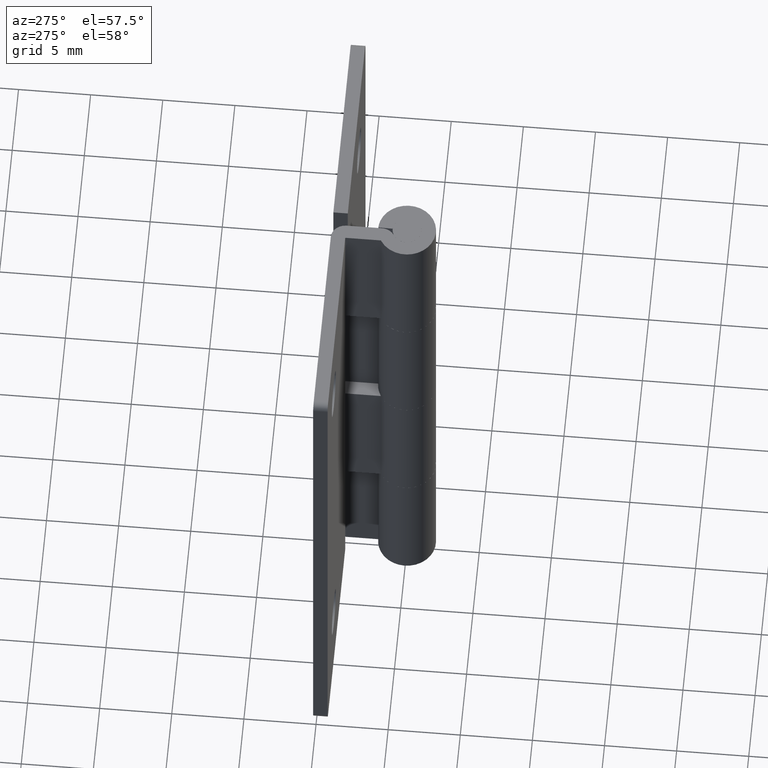
[diagram: clean part render]
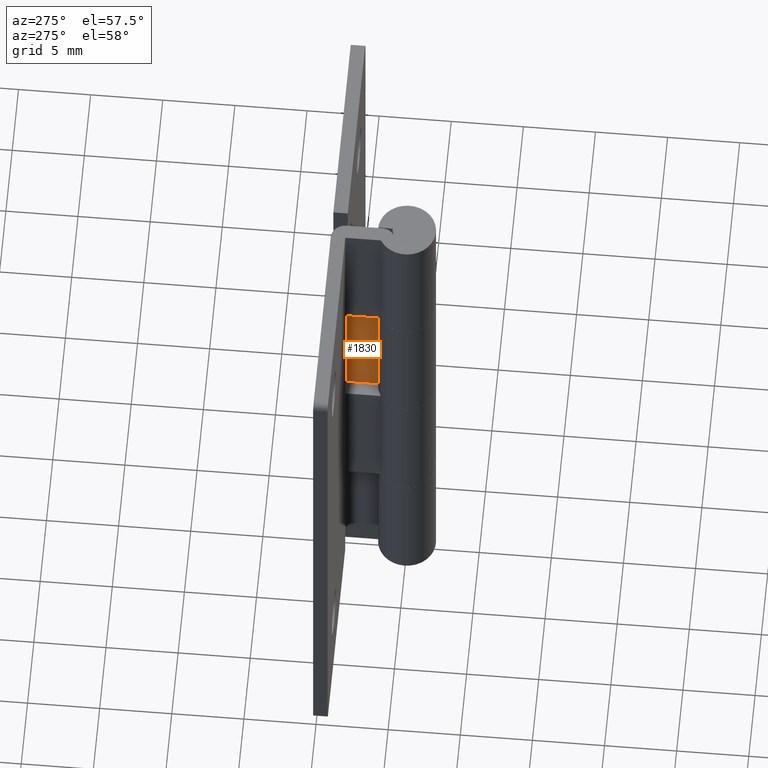
[diagram: same view with one face highlighted and labeled with its STEP entity id]
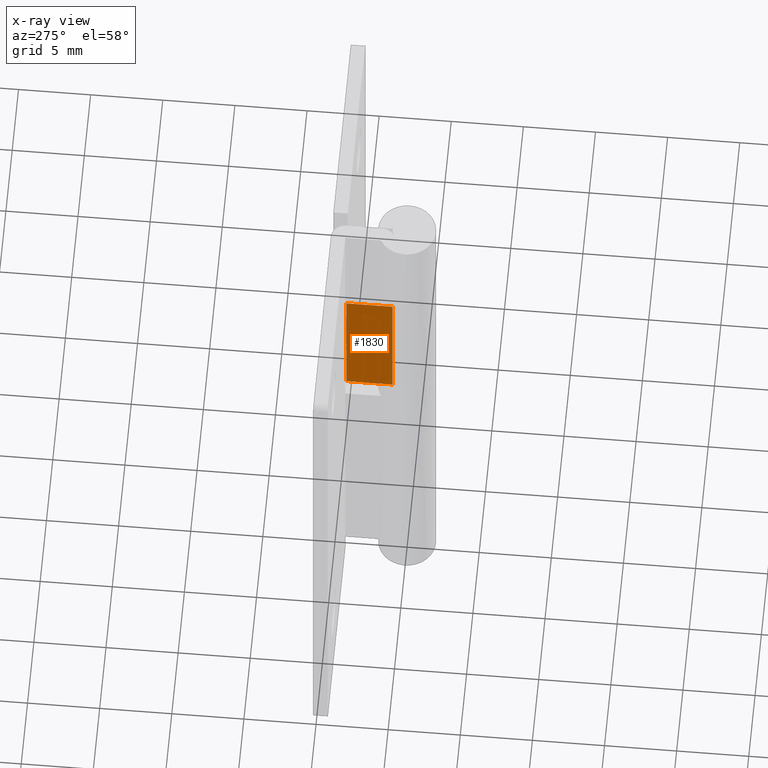
[diagram: x-ray of the same camera — body ghosted, the highlighted face saturated]
A machine part, auxiliary view. The second image highlights one B-rep face of the part: STEP entity #1830.
The next image is the same camera in x-ray: the body ghosted, the highlighted face saturated — about 0% of this face is hidden behind the body in this view.
In plain terms, the highlighted face is a freeform B-spline surface patch.
Its self-contained STEP definition (entity closure, byte-faithful):
#878=CARTESIAN_POINT('',(0.000005000000002,1.0,20.0));
#879=VERTEX_POINT('',#878);
#904=CARTESIAN_POINT('',(0.000005000000002,1.0,30.0));
#905=VERTEX_POINT('',#904);
#923=CARTESIAN_POINT('',(0.000005000000002,1.0,30.0));
#924=CARTESIAN_POINT('',(0.000005000000002,1.0,20.0));
#925=QUASI_UNIFORM_CURVE('',1,(#923,#924),.UNSPECIFIED.,.F.,.U.);
#926=EDGE_CURVE('',#905,#879,#925,.T.);
#1087=CARTESIAN_POINT('',(0.000005000000001,4.200001000000000,30.0));
#1088=VERTEX_POINT('',#1087);
#1102=CARTESIAN_POINT('',(0.000005000000002,1.0,30.0));
#1103=CARTESIAN_POINT('',(0.000005000000001,4.200001000000000,30.0));
#1104=QUASI_UNIFORM_CURVE('',1,(#1102,#1103),.UNSPECIFIED.,.F.,.U.);
#1105=EDGE_CURVE('',#905,#1088,#1104,.T.);
#1234=CARTESIAN_POINT('',(0.000005000000001,4.200001000000000,20.0));
#1235=VERTEX_POINT('',#1234);
#1236=CARTESIAN_POINT('',(0.000005000000002,1.0,20.0));
#1237=CARTESIAN_POINT('',(0.000005000000001,4.200001000000000,20.0));
#1238=QUASI_UNIFORM_CURVE('',1,(#1236,#1237),.UNSPECIFIED.,.F.,.U.);
#1239=EDGE_CURVE('',#879,#1235,#1238,.T.);
#1746=CARTESIAN_POINT('',(0.000005000000001,4.200001000000000,30.0));
#1747=CARTESIAN_POINT('',(0.000005000000001,4.200001000000000,20.0));
#1748=QUASI_UNIFORM_CURVE('',1,(#1746,#1747),.UNSPECIFIED.,.F.,.U.);
#1749=EDGE_CURVE('',#1088,#1235,#1748,.T.);
#1819=CARTESIAN_POINT('',(0.000005000000002,0.840159967684874,30.499499980618062));
#1820=CARTESIAN_POINT('',(0.000005000000002,0.840159967684874,19.500499751161041));
#1821=CARTESIAN_POINT('',(0.000005000000002,4.359840889263934,30.499499980618062));
#1822=CARTESIAN_POINT('',(0.000005000000002,4.359840889263934,19.500499751161041));
#1823=B_SPLINE_SURFACE_WITH_KNOTS('',1,1,((#1819,#1821),(#1820,#1822)),.UNSPECIFIED.,.F.,.F.,.U.,(2,2),(2,2),(0.0,10.999000229457030),(0.0,3.519680921579059),.UNSPECIFIED.);
#1824=ORIENTED_EDGE('',*,*,#926,.F.);
#1825=ORIENTED_EDGE('',*,*,#1105,.T.);
#1826=ORIENTED_EDGE('',*,*,#1749,.T.);
#1827=ORIENTED_EDGE('',*,*,#1239,.F.);
#1828=EDGE_LOOP('',(#1824,#1825,#1826,#1827));
#1829=FACE_OUTER_BOUND('',#1828,.T.);
#1830=ADVANCED_FACE('',(#1829),#1823,.F.);